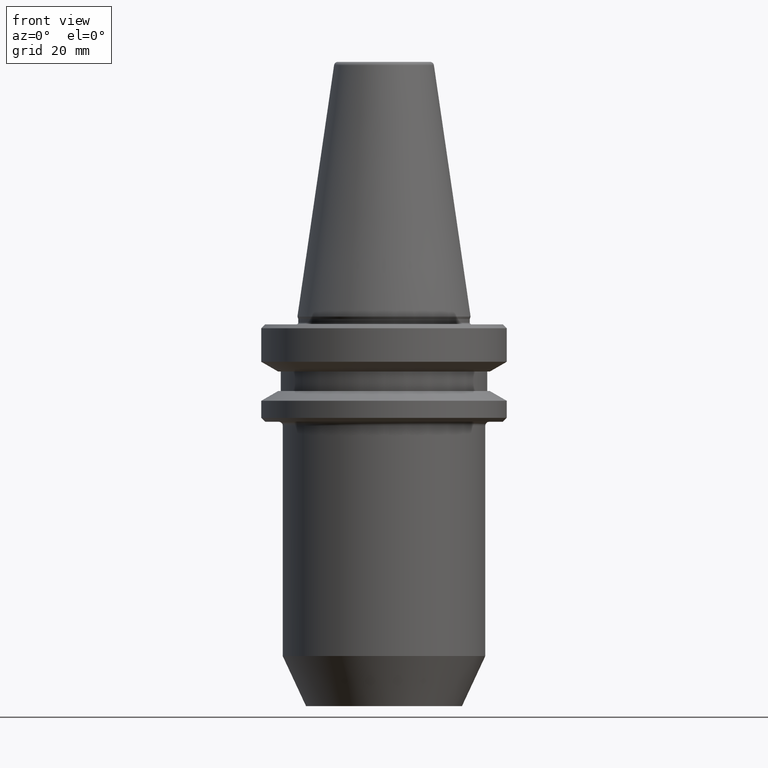
[diagram: clean part render]
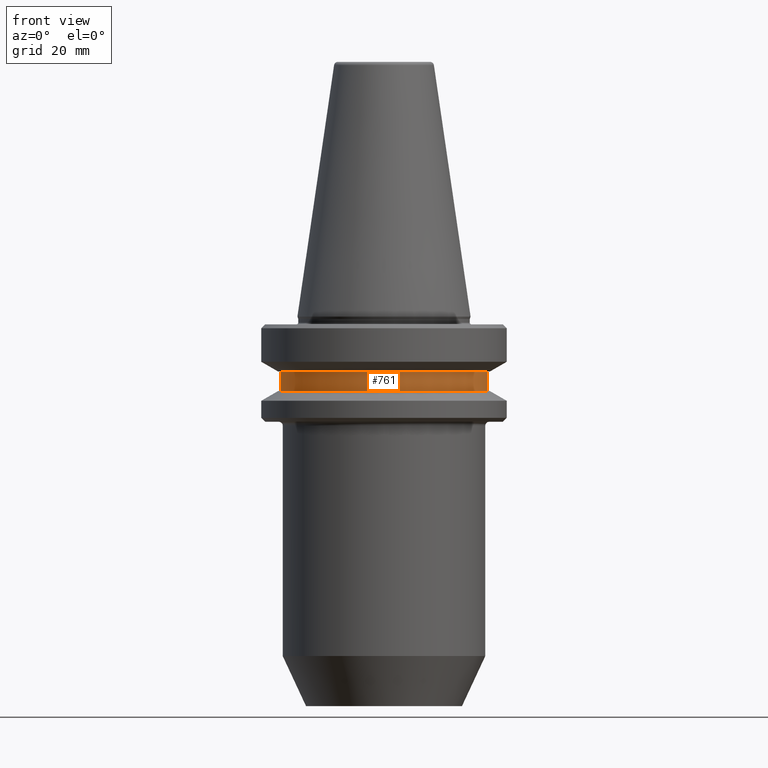
[diagram: same view with one face highlighted and labeled with its STEP entity id]
A machine part, front view. The second image highlights one B-rep face of the part: STEP entity #761.
In plain terms, the highlighted cylindrical surface (partial cylindrical patch) has radius 26.5 mm, axis along (-0, -0, 1).
Its self-contained STEP definition (entity closure, byte-faithful):
#23 = DIRECTION ( 'NONE',  ( 1.000000000000000000, 0.0000000000000000000, 0.0000000000000000000 ) ) ;
#24 = EDGE_CURVE ( 'NONE', #174, #168, #705, .T. ) ;
#43 = FACE_OUTER_BOUND ( 'NONE', #319, .T. ) ;
#67 = VECTOR ( 'NONE', #1012, 1000.000000000000000 ) ;
#168 = VERTEX_POINT ( 'NONE', #566 ) ;
#174 = VERTEX_POINT ( 'NONE', #263 ) ;
#181 = DIRECTION ( 'NONE',  ( -0.0000000000000000000, -0.0000000000000000000, 1.000000000000000000 ) ) ;
#202 = DIRECTION ( 'NONE',  ( -0.0000000000000000000, -0.0000000000000000000, 1.000000000000000000 ) ) ;
#203 = AXIS2_PLACEMENT_3D ( 'NONE', #977, #239, #470 ) ;
#231 = CARTESIAN_POINT ( 'NONE',  ( 0.0000000000000000000, 0.0000000000000000000, -18.41128678844344800 ) ) ;
#239 = DIRECTION ( 'NONE',  ( -0.0000000000000000000, -0.0000000000000000000, 1.000000000000000000 ) ) ;
#251 = EDGE_CURVE ( 'NONE', #331, #475, #718, .T. ) ;
#263 = CARTESIAN_POINT ( 'NONE',  ( -26.50000000000007800, 3.245314017740495600E-015, -18.41128678844344800 ) ) ;
#319 = EDGE_LOOP ( 'NONE', ( #456, #593, #375, #731 ) ) ;
#331 = VERTEX_POINT ( 'NONE', #844 ) ;
#371 = CARTESIAN_POINT ( 'NONE',  ( 0.0000000000000000000, 0.0000000000000000000, 82.74845858742440900 ) ) ;
#375 = ORIENTED_EDGE ( 'NONE', *, *, #686, .T. ) ;
#429 = LINE ( 'NONE', #590, #737 ) ;
#456 = ORIENTED_EDGE ( 'NONE', *, *, #829, .F. ) ;
#470 = DIRECTION ( 'NONE',  ( 1.000000000000000000, 0.0000000000000000000, 0.0000000000000000000 ) ) ;
#475 = VERTEX_POINT ( 'NONE', #531 ) ;
#483 = CARTESIAN_POINT ( 'NONE',  ( 26.50000000000007800, 0.0000000000000000000, 82.74845858742440900 ) ) ;
#487 = LINE ( 'NONE', #483, #67 ) ;
#531 = CARTESIAN_POINT ( 'NONE',  ( 26.50000000000007800, 0.0000000000000000000, -13.41128678834002700 ) ) ;
#566 = CARTESIAN_POINT ( 'NONE',  ( 26.50000000000007800, 0.0000000000000000000, -18.41128678844344800 ) ) ;
#590 = CARTESIAN_POINT ( 'NONE',  ( -26.50000000000007800, 3.245314017740495600E-015, 82.74845858742440900 ) ) ;
#593 = ORIENTED_EDGE ( 'NONE', *, *, #24, .T. ) ;
#616 = DIRECTION ( 'NONE',  ( -0.0000000000000000000, -0.0000000000000000000, 1.000000000000000000 ) ) ;
#686 = EDGE_CURVE ( 'NONE', #168, #475, #487, .T. ) ;
#696 = AXIS2_PLACEMENT_3D ( 'NONE', #371, #202, #23 ) ;
#697 = DIRECTION ( 'NONE',  ( 1.000000000000000000, 0.0000000000000000000, 0.0000000000000000000 ) ) ;
#705 = CIRCLE ( 'NONE', #1039, 26.50000000000007800 ) ;
#718 = CIRCLE ( 'NONE', #203, 26.50000000000007800 ) ;
#731 = ORIENTED_EDGE ( 'NONE', *, *, #251, .F. ) ;
#737 = VECTOR ( 'NONE', #181, 1000.000000000000000 ) ;
#761 = ADVANCED_FACE ( 'NONE', ( #43 ), #972, .T. ) ;
#829 = EDGE_CURVE ( 'NONE', #174, #331, #429, .T. ) ;
#844 = CARTESIAN_POINT ( 'NONE',  ( -26.50000000000007800, 3.245314017740495600E-015, -13.41128678834002700 ) ) ;
#972 = CYLINDRICAL_SURFACE ( 'NONE', #696, 26.50000000000007800 ) ;
#977 = CARTESIAN_POINT ( 'NONE',  ( 0.0000000000000000000, 0.0000000000000000000, -13.41128678834002700 ) ) ;
#1012 = DIRECTION ( 'NONE',  ( -0.0000000000000000000, -0.0000000000000000000, 1.000000000000000000 ) ) ;
#1039 = AXIS2_PLACEMENT_3D ( 'NONE', #231, #616, #697 ) ;